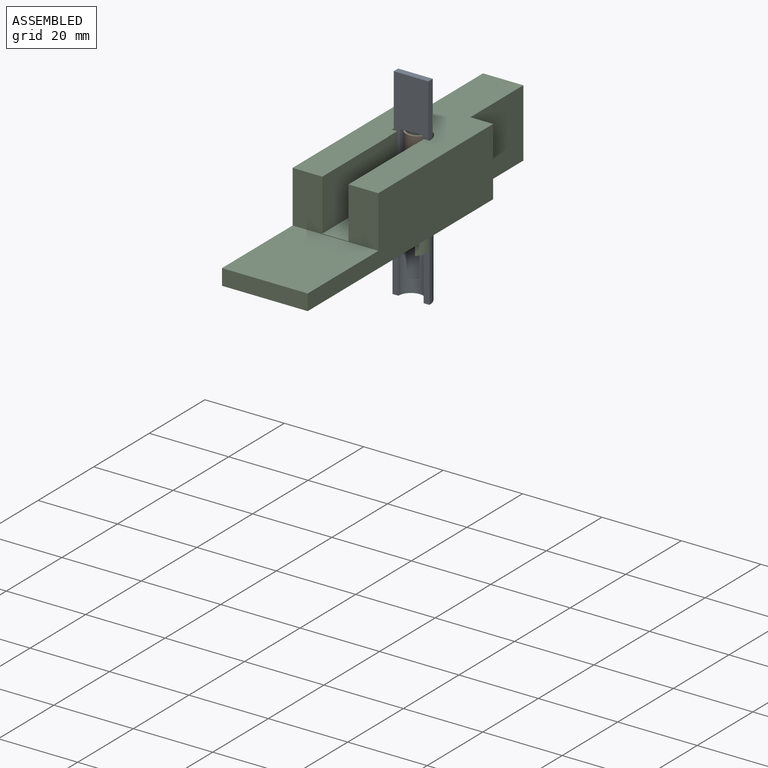
[diagram: assembled view]
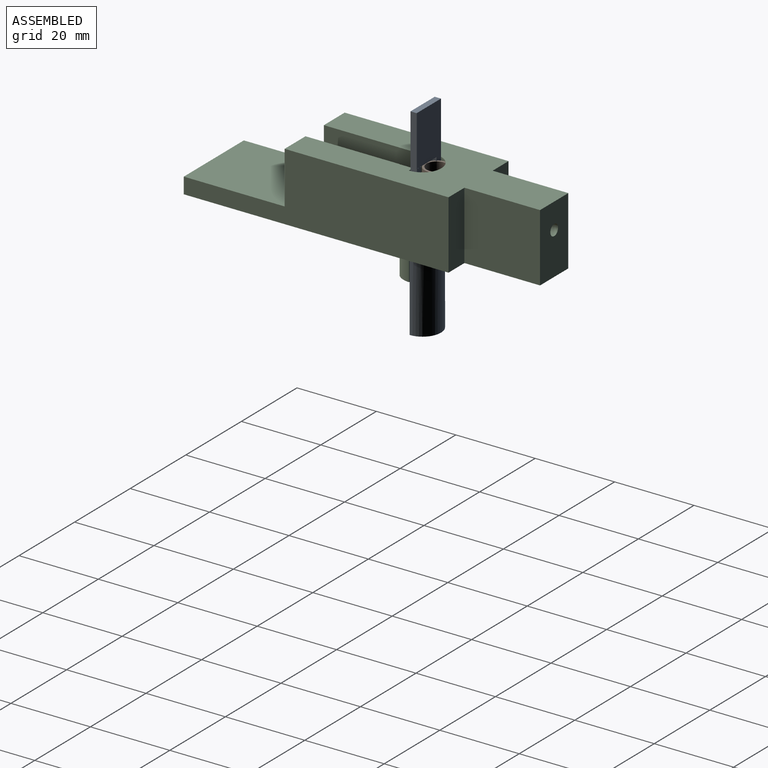
[diagram: assembled view, second angle]
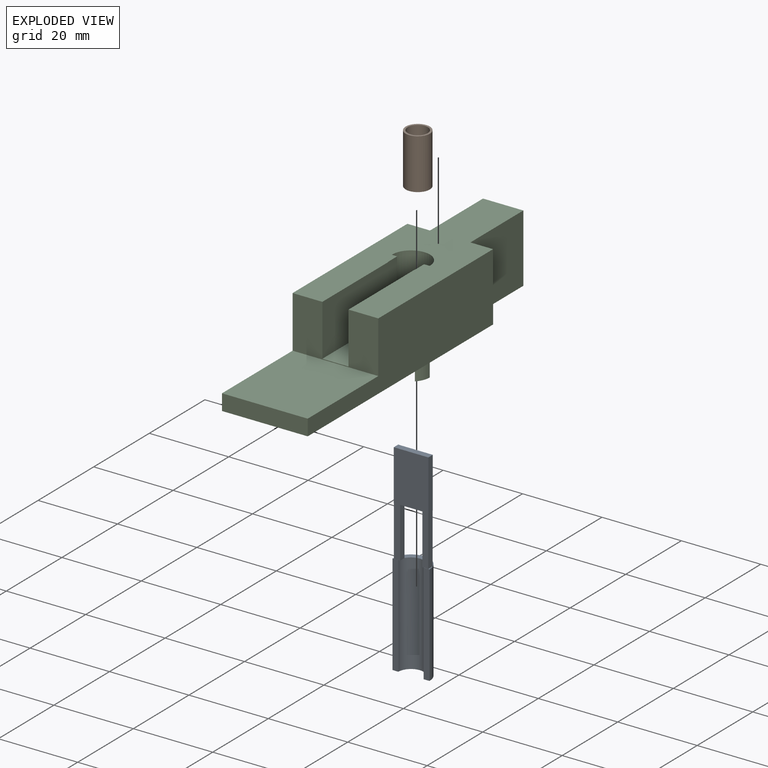
[diagram: exploded view]
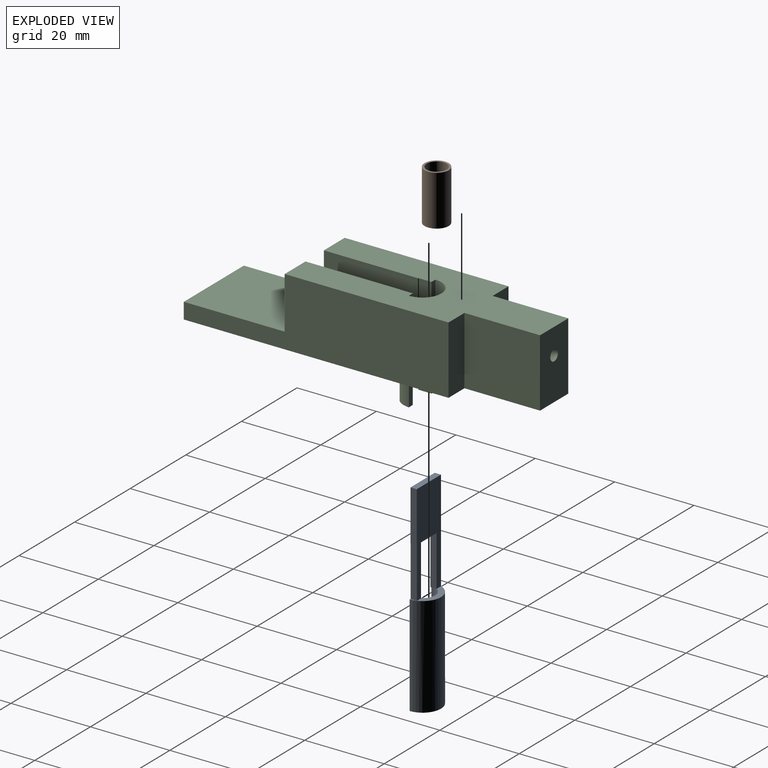
[diagram: exploded view, second angle]
ASSEMBLY  parts=3 mates=2
PART A: 21 faces, bbox 9.3x4.7x50.8 mm
  f0: plane 1.48x0.01mm, normal (0,0,1), area 0mm2, adj f9,f12,f13,f15
  f1: cylinder r=4.65mm len=25.4mm, axis (0,0,1), area 371.1mm2, adj f2,f4,f5,f6
  f2: plane 25.4x1.48mm, normal (0,-1,0), area 37.5mm2, adj f1,f3,f5,f6
  f3: cylinder r=3.17mm len=25.4mm, axis (0,0,1), area 253.2mm2, adj f2,f4,f5,f6,f7,f16
  f4: plane 25.4x1.48mm, normal (0,-1,0), area 37.5mm2, adj f1,f3,f5,f6
  f5: plane 9.3x4.65mm, normal (0,0,-1), area 18.2mm2, adj f1,f2,f3,f4
  f6: plane 9.3x4.65mm, normal (0,0,1), area 14.1mm2, adj f1,f2,f3,f4,f9,f10,f11,f12
  f7: plane 1.55x0.42mm, normal (0,0,-1), area 0.4mm2, adj f3,f8,f11
  f8: plane 12.7x1.55mm, normal (1,0,0), area 19.7mm2, adj f7,f9,f11,f17
  f9: plane 25.4x8.71mm, normal (0,1,0), area 130.9mm2, adj f0,f6,f8,f10,f17,f19,f20
  f10: plane 25.4x1.57mm, normal (-1,0,0), area 39.7mm2, adj f6,f9,f11,f17,f18,f20
  f11: plane 12.7x1.6mm, normal (0,-1,0), area 20.3mm2, adj f6,f7,f8,f10,f17
  f12: plane 12.7x1.48mm, normal (0,1,0), area 18.8mm2, adj f0,f6,f13,f15
  f13: plane 12.7x1.57mm, normal (-1,0,0), area 19.9mm2, adj f0,f6,f12,f14,f16,f17
  f14: plane 12.7x1.48mm, normal (0,-1,0), area 18.8mm2, adj f6,f13,f15,f16,f17
  f15: plane 12.7x1.57mm, normal (1,0,0), area 19.9mm2, adj f0,f6,f12,f14,f17
  f16: plane 1.36x0.32mm, normal (0,0,-1), area 0.3mm2, adj f3,f13,f14
  f17: plane 8.71x1.57mm, normal (0,0,-1), area 8.9mm2, adj f8,f9,f10,f11,f13,f14,f15,f18
  f18: plane 12.7x8.71mm, normal (0,-1,0), area 110.6mm2, adj f10,f17,f19,f20
  f19: plane 12.7x1.57mm, normal (1,0,0), area 19.9mm2, adj f9,f17,f18,f20
  f20: plane 8.71x1.57mm, normal (0,0,1), area 13.7mm2, adj f9,f10,f18,f19
PART B: 4 faces, bbox 6.1x6.1x12.7 mm
  f0: cylinder r=2.54mm len=12.7mm, axis (0,0,-1), area 202.7mm2, adj f2,f3
  f1: cylinder r=3.05mm len=12.7mm, axis (0,0,-1), area 243.2mm2, adj f2,f3
  f2: plane 6.1x6.1mm, normal (0,0,1), area 8.9mm2, adj f0,f1
  f3: plane 6.1x6.1mm, normal (0,0,-1), area 8.9mm2, adj f0,f1
PART C: 32 faces, bbox 21.6x85.7x25.4 mm
  f0: cylinder r=4.77mm len=17.15mm, axis (0,0,1), area 34.5mm2, adj f2,f4,f5,f7,f12,f23,f27
  f1: cylinder r=4.77mm len=17.15mm, axis (0,0,1), area 1mm2, adj f2,f7,f21,f28
  f2: plane 85.73x21.59mm, normal (0,0,-1), area 1561.3mm2, adj f0,f1,f3,f6,f8,f10,f11,f14
  f3: cylinder r=4.76mm len=17.15mm, axis (0,0,-1), area 234.2mm2, adj f2,f7,f13,f19,f21
  f4: plane 23.73x12.95mm, normal (1,0,0), area 307.4mm2, adj f0,f7,f9,f12
  f5: plane 23.73x12.95mm, normal (-1,0,0), area 307.4mm2, adj f0,f7,f9,f12
  f6: plane 17.15x5.72mm, normal (0,1,0), area 98mm2, adj f2,f7,f8,f15
  f7: plane 60.33x21.59mm, normal (0,0,1), area 868.7mm2, adj f0,f1,f3,f4,f5,f6,f8,f9
  f8: plane 66.68x17.15mm, normal (-1,0,0), area 809.9mm2, adj f2,f6,f7,f9,f30,f31
  f9: plane 21.59x13.12mm, normal (0,-1,0), area 197.7mm2, adj f4,f5,f7,f8,f10,f12,f30
  f10: plane 66.68x17.15mm, normal (1,0,0), area 809.9mm2, adj f2,f7,f9,f11,f30,f31
  f11: plane 17.15x5.72mm, normal (0,1,0), area 98mm2, adj f2,f7,f10,f14
  f12: plane 23.73x6.6mm, normal (0,0,1), area 150.7mm2, adj f0,f4,f5,f9
  f13: cylinder r=2.67mm len=22.85mm, axis (0,1,0), area 375.9mm2, adj f3,f16
  f14: plane 19.05x17.15mm, normal (1,0,0), area 326.6mm2, adj f2,f7,f11,f18
  f15: plane 19.05x17.15mm, normal (-1,0,0), area 326.6mm2, adj f2,f6,f7,f18
  f16: plane 5.33x5.33mm, normal (0,-1,0), area 16.3mm2, adj f13,f17
  f17: cylinder r=1.38mm len=6.35mm, axis (0,-1,0), area 55.2mm2, adj f16,f18
  f18: plane 17.15x10.16mm, normal (0,1,0), area 168.2mm2, adj f2,f7,f14,f15,f17
  f19: plane 17.15x0.01mm, normal (0,-1,0), area 0.2mm2, adj f2,f3,f7,f20
  f20: cylinder r=4.77mm len=17.15mm, axis (0,0,1), area 1.5mm2, adj f2,f7,f19,f24
  f21: plane 17.15x0.01mm, normal (0,-1,0), area 0.2mm2, adj f1,f2,f3,f7
  f22: cylinder r=4.81mm len=8.26mm, axis (0,0,1), area 30.5mm2, adj f2,f23,f24,f25
  f23: plane 25.4x3.29mm, normal (1,0,0), area 82.4mm2, adj f0,f2,f7,f22,f24,f25
  f24: plane 25.4x1.43mm, normal (0.01,1,0), area 35.3mm2, adj f2,f7,f20,f22,f23,f25
  f25: plane 3.31x1.43mm, normal (0,0,-1), area 3.2mm2, adj f22,f23,f24
  f26: cylinder r=4.83mm len=8.26mm, axis (0,0,1), area 30.7mm2, adj f2,f27,f28,f29
  f27: plane 25.4x3.31mm, normal (-1,0,0), area 83.3mm2, adj f0,f2,f7,f26,f28,f29
  f28: plane 25.4x1.43mm, normal (-0.02,1,0), area 35.9mm2, adj f1,f2,f7,f26,f27,f29
  f29: plane 3.34x1.43mm, normal (0,0,-1), area 3.2mm2, adj f26,f27,f28
  f30: plane 25.4x21.59mm, normal (0,0,1), area 548.4mm2, adj f8,f9,f10,f31
  f31: plane 21.59x4.03mm, normal (0,-1,0), area 86.9mm2, adj f2,f8,f10,f30
PLACE A t=(-16.86,-35.75,-1.33)mm
PLACE B t=(-6.58,-5.4,14.92)mm
PLACE C t=(-16.86,-35.75,10.73)mm fixed
MATE planar B.f1 <-> C.f12  axis (0,0,-1) through (-6.58,-5.4,14.92)mm
MATE slider A.f1 <-> C.f0  axis (0,0,1) through (-6.06,-8.57,-9.58)mm
